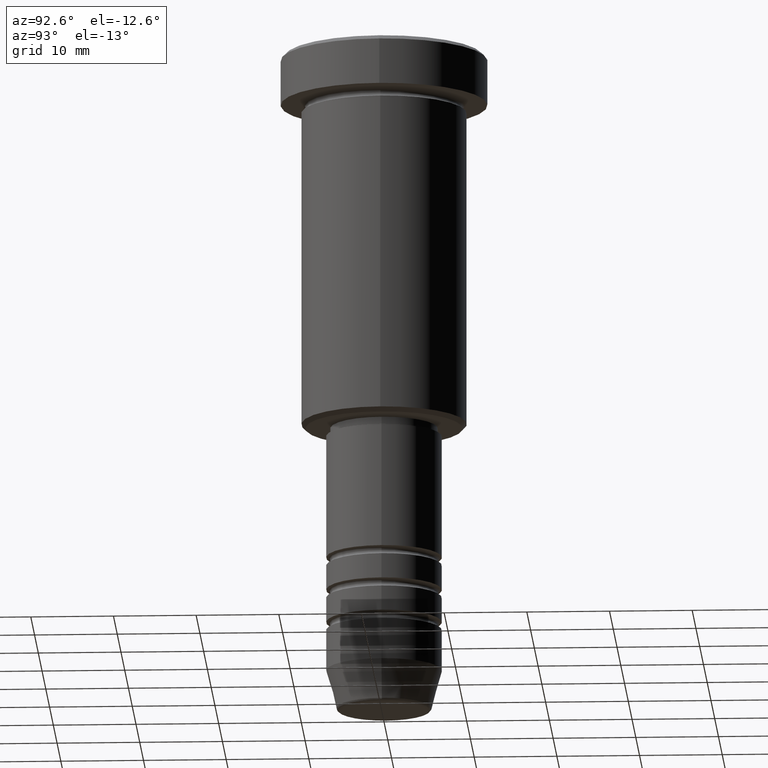
[diagram: clean part render]
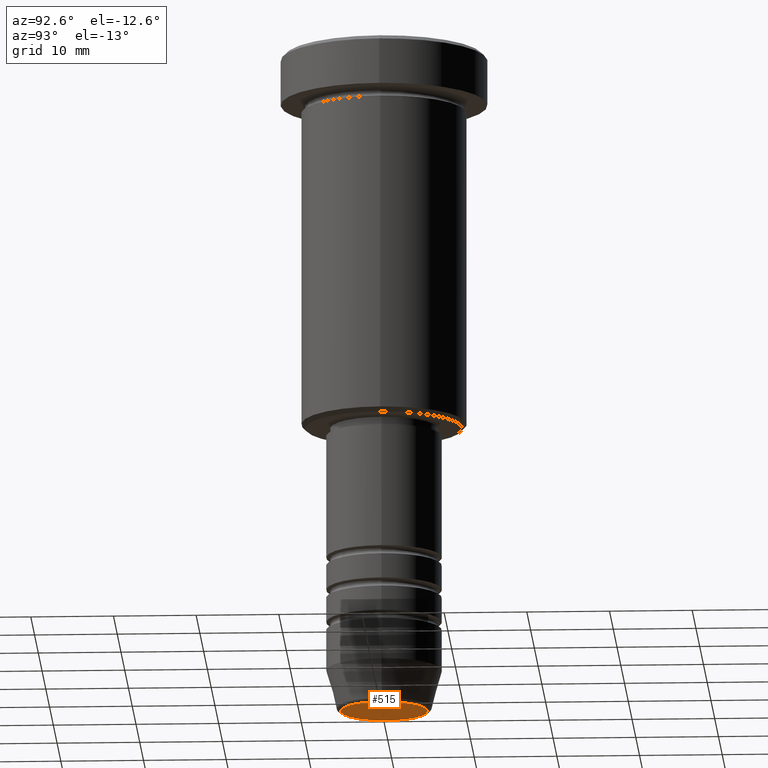
[diagram: same view with one face highlighted and labeled with its STEP entity id]
A machine part, auxiliary view. The second image highlights one B-rep face of the part: STEP entity #515.
In plain terms, the highlighted planar face has unit normal (0, -0, 1).
Its self-contained STEP definition (entity closure, byte-faithful):
#17 = AXIS2_PLACEMENT_3D ( 'NONE', #1126, #591, #318 ) ;
#33 = CIRCLE ( 'NONE', #17, 5.276590543854901227 ) ;
#123 = VERTEX_POINT ( 'NONE', #338 ) ;
#161 = DIRECTION ( 'NONE',  ( 1.000000000000000000, 0.000000000000000000, 0.000000000000000000 ) ) ;
#182 = FACE_OUTER_BOUND ( 'NONE', #478, .T. ) ;
#310 = CARTESIAN_POINT ( 'NONE',  ( 0.000000000000000000, 0.000000000000000000, -81.00000000000001421 ) ) ;
#318 = DIRECTION ( 'NONE',  ( 1.000000000000000000, 0.000000000000000000, 0.000000000000000000 ) ) ;
#338 = CARTESIAN_POINT ( 'NONE',  ( 5.276590543854901227, 0.000000000000000000, -81.00000000000001421 ) ) ;
#478 = EDGE_LOOP ( 'NONE', ( #937, #735 ) ) ;
#492 = EDGE_CURVE ( 'NONE', #123, #802, #33, .T. ) ;
#515 = ADVANCED_FACE ( 'NONE', ( #182 ), #1160, .F. ) ;
#529 = DIRECTION ( 'NONE',  ( 0.000000000000000000, -0.000000000000000000, 1.000000000000000000 ) ) ;
#591 = DIRECTION ( 'NONE',  ( 0.000000000000000000, 0.000000000000000000, -1.000000000000000000 ) ) ;
#657 = CIRCLE ( 'NONE', #675, 5.276590543854901227 ) ;
#666 = DIRECTION ( 'NONE',  ( 0.000000000000000000, 0.000000000000000000, -1.000000000000000000 ) ) ;
#675 = AXIS2_PLACEMENT_3D ( 'NONE', #310, #666, #1023 ) ;
#735 = ORIENTED_EDGE ( 'NONE', *, *, #1071, .T. ) ;
#790 = AXIS2_PLACEMENT_3D ( 'NONE', #808, #529, #161 ) ;
#802 = VERTEX_POINT ( 'NONE', #864 ) ;
#808 = CARTESIAN_POINT ( 'NONE',  ( 0.000000000000000000, 0.000000000000000000, -81.00000000000001421 ) ) ;
#864 = CARTESIAN_POINT ( 'NONE',  ( -5.276590543854901227, 6.757689212787763943E-16, -81.00000000000001421 ) ) ;
#937 = ORIENTED_EDGE ( 'NONE', *, *, #492, .T. ) ;
#1023 = DIRECTION ( 'NONE',  ( 1.000000000000000000, 0.000000000000000000, 0.000000000000000000 ) ) ;
#1071 = EDGE_CURVE ( 'NONE', #802, #123, #657, .T. ) ;
#1126 = CARTESIAN_POINT ( 'NONE',  ( 0.000000000000000000, 0.000000000000000000, -81.00000000000001421 ) ) ;
#1160 = PLANE ( 'NONE',  #790 ) ;